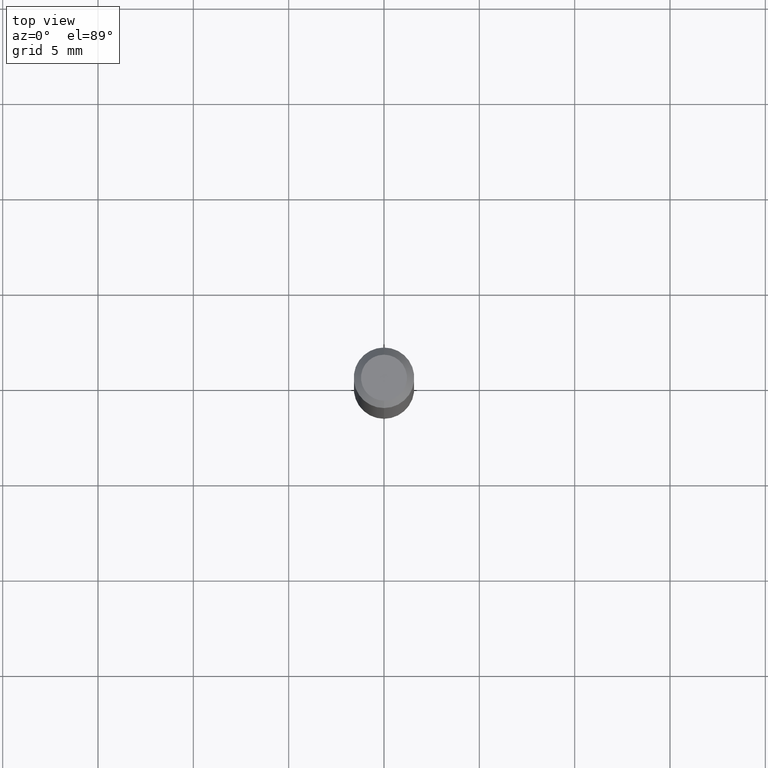
[diagram: clean part render]
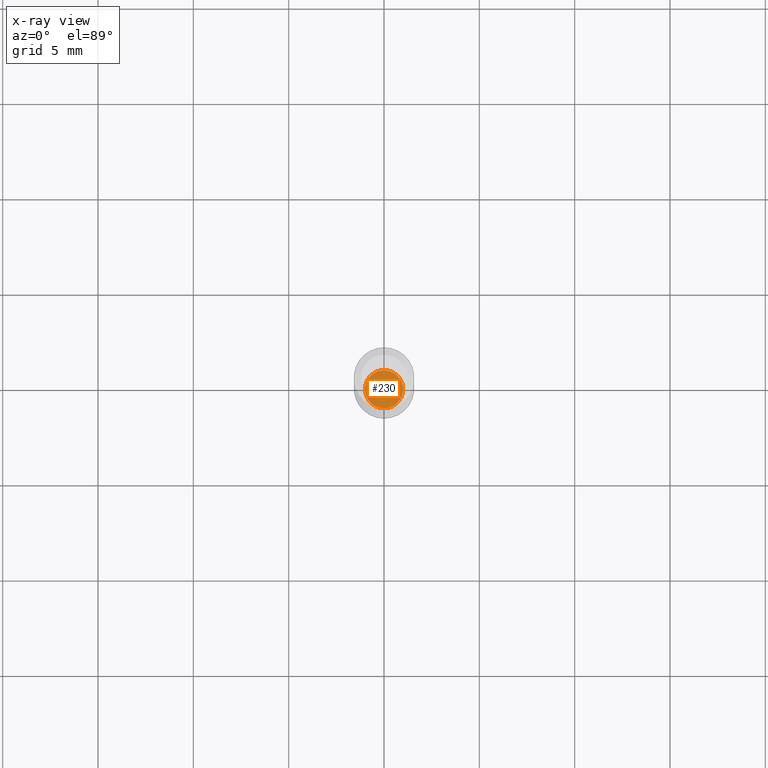
[diagram: x-ray — body ghosted, one internal face saturated and labeled with its STEP entity id]
A machine part, top view, then the same camera in x-ray: the body is ghosted and one INTERNAL B-rep face — a face not visible from any outside direction — is saturated and labeled: STEP entity #230.
In plain terms, the highlighted planar face has unit normal (-0, 0, 1).
Its self-contained STEP definition (entity closure, byte-faithful):
#13 = DIRECTION ( 'NONE',  ( -2.445465007158633692E-29, 3.491486779265324816E-15, 1.000000000000000000 ) ) ;
#25 = EDGE_CURVE ( 'NONE', #368, #127, #261, .T. ) ;
#50 = DIRECTION ( 'NONE',  ( -6.982962677686265922E-15, -1.000000000000000000, 3.491486779265324816E-15 ) ) ;
#80 = ORIENTED_EDGE ( 'NONE', *, *, #258, .F. ) ;
#81 = CARTESIAN_POINT ( 'NONE',  ( 3.374741709878914377E-29, -4.818251755386149216E-15, -1.380000000000000115 ) ) ;
#83 = DIRECTION ( 'NONE',  ( -2.445465007158633411E-29, 3.491486779265324816E-15, 1.000000000000000000 ) ) ;
#86 = DIRECTION ( 'NONE',  ( -2.445465007158633692E-29, 3.491486779265324816E-15, 1.000000000000000000 ) ) ;
#89 = CARTESIAN_POINT ( 'NONE',  ( -2.758270257685737501E-16, -0.03950000000000481598, -1.379999999999999671 ) ) ;
#127 = VERTEX_POINT ( 'NONE', #89 ) ;
#135 = CARTESIAN_POINT ( 'NONE',  ( 3.374741709878914377E-29, -4.818251755386149216E-15, -1.380000000000000115 ) ) ;
#137 = CARTESIAN_POINT ( 'NONE',  ( 2.824407374646732069E-16, 0.03949999999999518480, -1.380000000000000338 ) ) ;
#172 = DIRECTION ( 'NONE',  ( -6.982962677686265133E-15, -1.000000000000000000, 6.916070870036109544E-15 ) ) ;
#201 = AXIS2_PLACEMENT_3D ( 'NONE', #135, #13, #172 ) ;
#230 = ADVANCED_FACE ( 'NONE', ( #240 ), #437, .F. ) ;
#240 = FACE_OUTER_BOUND ( 'NONE', #313, .T. ) ;
#243 = CARTESIAN_POINT ( 'NONE',  ( 3.374741709878914377E-29, -4.818251755386149216E-15, -1.380000000000000115 ) ) ;
#258 = EDGE_CURVE ( 'NONE', #127, #368, #365, .T. ) ;
#261 = CIRCLE ( 'NONE', #201, 0.03950000000000000039 ) ;
#264 = AXIS2_PLACEMENT_3D ( 'NONE', #243, #86, #401 ) ;
#313 = EDGE_LOOP ( 'NONE', ( #80, #385 ) ) ;
#365 = CIRCLE ( 'NONE', #264, 0.03950000000000000039 ) ;
#368 = VERTEX_POINT ( 'NONE', #137 ) ;
#385 = ORIENTED_EDGE ( 'NONE', *, *, #25, .F. ) ;
#401 = DIRECTION ( 'NONE',  ( -6.982962677686265133E-15, -1.000000000000000000, 6.916070870036109544E-15 ) ) ;
#437 = PLANE ( 'NONE',  #453 ) ;
#453 = AXIS2_PLACEMENT_3D ( 'NONE', #81, #83, #50 ) ;